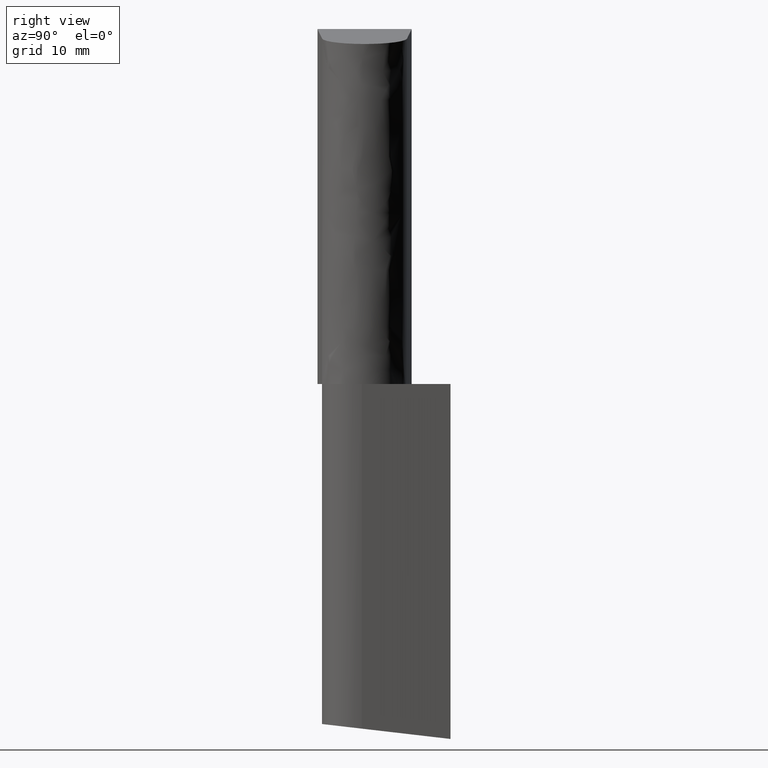
[diagram: clean part render]
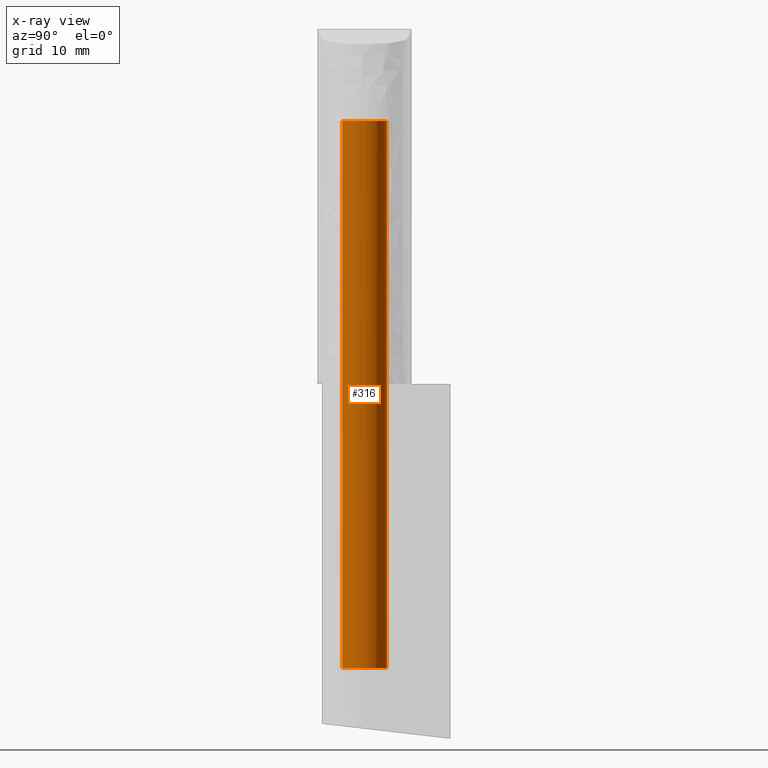
[diagram: x-ray — body ghosted, one internal face saturated and labeled with its STEP entity id]
A machine part, right view, then the same camera in x-ray: the body is ghosted and one INTERNAL B-rep face — a face not visible from any outside direction — is saturated and labeled: STEP entity #316.
In plain terms, the highlighted face is a freeform B-spline surface patch.
Its self-contained STEP definition (entity closure, byte-faithful):
#62=CARTESIAN_POINT('',(2.808430869602352,1.054853973711573,82.700004309449270));
#63=VERTEX_POINT('',#62);
#64=CARTESIAN_POINT('',(3.000000142492070,0.0,82.700004309508799));
#65=VERTEX_POINT('',#64);
#66=CARTESIAN_POINT('',(2.808430869602352,1.054853973711573,82.700004309449255));
#67=CARTESIAN_POINT('',(3.000000142492070,0.544822184541486,82.700004309508799));
#68=CARTESIAN_POINT('',(3.000000142492070,0.0,82.700004309508799));
#76=(BOUNDED_CURVE()B_SPLINE_CURVE(2,(#66,#67,#68),.UNSPECIFIED.,.F.,.U.)B_SPLINE_CURVE_WITH_KNOTS((3,3),(0.440284170851652,0.500000000000000),.UNSPECIFIED.)CURVE()GEOMETRIC_REPRESENTATION_ITEM()RATIONAL_B_SPLINE_CURVE((0.893499554577934,0.930038554346505,1.0))REPRESENTATION_ITEM(''));
#77=EDGE_CURVE('',#63,#65,#76,.T.);
#116=CARTESIAN_POINT('',(0.183145789533528,-2.994404527569559,82.700004309508785));
#117=VERTEX_POINT('',#116);
#123=CARTESIAN_POINT('',(3.000000142492070,0.0,82.700004309508799));
#124=CARTESIAN_POINT('',(3.000000142492069,-2.822117722033650,82.700004309508799));
#125=CARTESIAN_POINT('',(0.183145789533528,-2.994404527569559,82.700004309508785));
#133=(BOUNDED_CURVE()B_SPLINE_CURVE(2,(#123,#124,#125),.UNSPECIFIED.,.F.,.U.)B_SPLINE_CURVE_WITH_KNOTS((3,3),(0.500000000000000,0.739332924849200),.UNSPECIFIED.)CURVE()GEOMETRIC_REPRESENTATION_ITEM()RATIONAL_B_SPLINE_CURVE((1.0,0.719604037091518,0.976071961533395))REPRESENTATION_ITEM(''));
#134=EDGE_CURVE('',#65,#117,#133,.T.);
#161=CARTESIAN_POINT('',(-0.354102721005245,2.979028720561465,82.700004309508799));
#162=VERTEX_POINT('',#161);
#163=CARTESIAN_POINT('',(-0.354102721005245,2.979028720561465,82.700004309508799));
#164=CARTESIAN_POINT('',(-0.177672367612989,3.000000142492071,82.700004309508799));
#165=CARTESIAN_POINT('',(0.0,3.000000142492070,82.700004309508799));
#166=CARTESIAN_POINT('',(2.077828885110556,3.000000142492070,82.700004309508799));
#167=CARTESIAN_POINT('',(2.808430869602352,1.054853973711573,82.700004309449255));
#175=(BOUNDED_CURVE()B_SPLINE_CURVE(2,(#163,#164,#165,#166,#167),.UNSPECIFIED.,.F.,.U.)B_SPLINE_CURVE_WITH_KNOTS((3,2,3),(0.229562473491136,0.250000000000000,0.440284170851652),.UNSPECIFIED.)CURVE()GEOMETRIC_REPRESENTATION_ITEM()RATIONAL_B_SPLINE_CURVE((0.956026754139848,0.976055948304934,1.0,0.777068226840043,0.893499554577934))REPRESENTATION_ITEM(''));
#176=EDGE_CURVE('',#162,#63,#175,.T.);
#245=CARTESIAN_POINT('',(-0.354102720789256,2.979028720587301,84.530004305946505));
#246=CARTESIAN_POINT('',(-0.268844198683350,2.989162988323470,84.530004305946491));
#247=CARTESIAN_POINT('',(-0.183145627303523,2.994404537492213,84.530004305946505));
#248=CARTESIAN_POINT('',(2.811258910188690,3.177550164795737,84.530004305946505));
#249=CARTESIAN_POINT('',(2.994404537492213,0.183145627303523,84.530004305946505));
#250=CARTESIAN_POINT('',(3.177550164795737,-2.811258910188690,84.530004305946505));
#251=CARTESIAN_POINT('',(0.183145627303523,-2.994404537492213,84.530004305946505));
#252=CARTESIAN_POINT('',(-0.354102720789256,2.979028720587301,7.624254455652562));
#253=CARTESIAN_POINT('',(-0.268844198683350,2.989162988323470,7.624254455652561));
#254=CARTESIAN_POINT('',(-0.183145627303523,2.994404537492213,7.624254455652562));
#255=CARTESIAN_POINT('',(2.811258910188690,3.177550164795737,7.624254455652562));
#256=CARTESIAN_POINT('',(2.994404537492213,0.183145627303523,7.624254455652562));
#257=CARTESIAN_POINT('',(3.177550164795737,-2.811258910188690,7.624254455652562));
#258=CARTESIAN_POINT('',(0.183145627303523,-2.994404537492213,7.624254455652562));
#266=(BOUNDED_SURFACE()B_SPLINE_SURFACE(2,1,((#245,#252),(#246,#253),(#247,#254),(#248,#255),(#249,#256),(#250,#257),(#251,#258)),.UNSPECIFIED.,.F.,.F.,.U.)B_SPLINE_SURFACE_WITH_KNOTS((3,2,2,3),(2,2),(0.0,0.198822519382651,5.169385503948914,10.139948488515181),(0.0,76.905749850293944),.UNSPECIFIED.)GEOMETRIC_REPRESENTATION_ITEM()RATIONAL_B_SPLINE_SURFACE(((0.977505800795127,0.977505800795127),(0.988284271247462,0.988284271247462),(1.0,1.0),(0.707106781186548,0.707106781186548),(1.0,1.0),(0.707106781186548,0.707106781186548),(1.0,1.0)))REPRESENTATION_ITEM('')SURFACE());
#267=ORIENTED_EDGE('',*,*,#176,.T.);
#268=ORIENTED_EDGE('',*,*,#77,.T.);
#269=ORIENTED_EDGE('',*,*,#134,.T.);
#270=CARTESIAN_POINT('',(0.183145951763569,-2.994404517647512,9.500004452001189));
#271=VERTEX_POINT('',#270);
#272=CARTESIAN_POINT('',(0.183145789533528,-2.994404527569559,82.700004309508785));
#273=CARTESIAN_POINT('',(0.183145951763569,-2.994404517647512,9.500004452001189));
#274=QUASI_UNIFORM_CURVE('',1,(#272,#273),.UNSPECIFIED.,.F.,.U.);
#275=EDGE_CURVE('',#117,#271,#274,.T.);
#276=ORIENTED_EDGE('',*,*,#275,.T.);
#277=CARTESIAN_POINT('',(3.000000142492710,0.0,9.500004452001189));
#278=VERTEX_POINT('',#277);
#279=CARTESIAN_POINT('',(3.000000142492710,0.0,9.500004452001189));
#280=CARTESIAN_POINT('',(3.000000142492710,-2.822117722034252,9.500004452001189));
#281=CARTESIAN_POINT('',(0.183145951763569,-2.994404517647511,9.500004452001189));
#289=(BOUNDED_CURVE()B_SPLINE_CURVE(2,(#279,#280,#281),.UNSPECIFIED.,.F.,.U.)B_SPLINE_CURVE_WITH_KNOTS((3,3),(0.500000000000000,0.739332924849200),.UNSPECIFIED.)CURVE()GEOMETRIC_REPRESENTATION_ITEM()RATIONAL_B_SPLINE_CURVE((1.0,0.719604037091518,0.976071961533395))REPRESENTATION_ITEM(''));
#290=EDGE_CURVE('',#278,#271,#289,.T.);
#291=ORIENTED_EDGE('',*,*,#290,.F.);
#292=CARTESIAN_POINT('',(-0.354102721005283,2.979028720561783,9.500004452001189));
#293=VERTEX_POINT('',#292);
#294=CARTESIAN_POINT('',(-0.354102721005283,2.979028720561783,9.500004452001189));
#295=CARTESIAN_POINT('',(-0.177672367613027,3.000000142492711,9.500004452001189));
#296=CARTESIAN_POINT('',(0.0,3.000000142492710,9.500004452001189));
#297=CARTESIAN_POINT('',(3.000000142492709,3.000000142492709,9.500004452001189));
#298=CARTESIAN_POINT('',(3.000000142492710,0.0,9.500004452001189));
#306=(BOUNDED_CURVE()B_SPLINE_CURVE(2,(#294,#295,#296,#297,#298),.UNSPECIFIED.,.F.,.U.)B_SPLINE_CURVE_WITH_KNOTS((3,2,3),(0.229562473491136,0.250000000000000,0.500000000000000),.UNSPECIFIED.)CURVE()GEOMETRIC_REPRESENTATION_ITEM()RATIONAL_B_SPLINE_CURVE((0.956026754139848,0.976055948304934,1.0,0.707106781186548,1.0))REPRESENTATION_ITEM(''));
#307=EDGE_CURVE('',#293,#278,#306,.T.);
#308=ORIENTED_EDGE('',*,*,#307,.F.);
#309=CARTESIAN_POINT('',(-0.354102721005245,2.979028720561465,82.700004309508799));
#310=CARTESIAN_POINT('',(-0.354102721005283,2.979028720561783,9.500004452001189));
#311=QUASI_UNIFORM_CURVE('',1,(#309,#310),.UNSPECIFIED.,.F.,.U.);
#312=EDGE_CURVE('',#162,#293,#311,.T.);
#313=ORIENTED_EDGE('',*,*,#312,.F.);
#314=EDGE_LOOP('',(#267,#268,#269,#276,#291,#308,#313));
#315=FACE_OUTER_BOUND('',#314,.T.);
#316=ADVANCED_FACE('',(#315),#266,.T.);